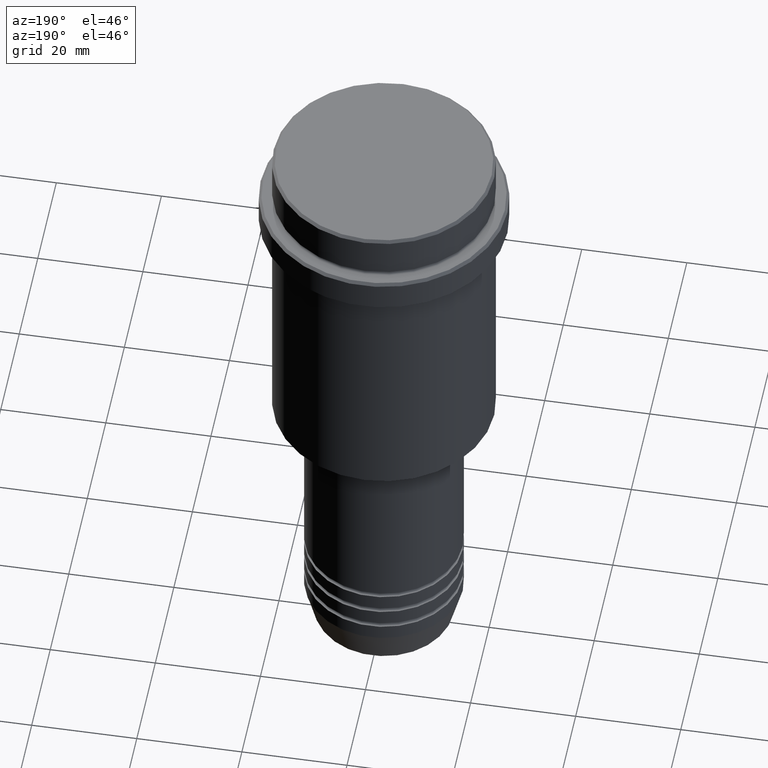
[diagram: clean part render]
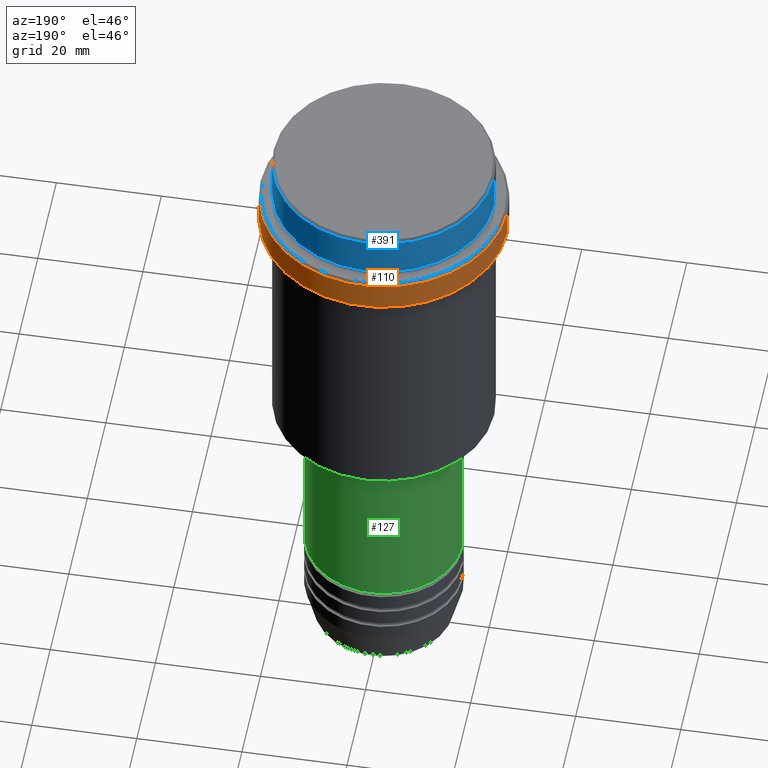
[diagram: same view with three faces highlighted in distinct colors, each labeled with its STEP entity id]
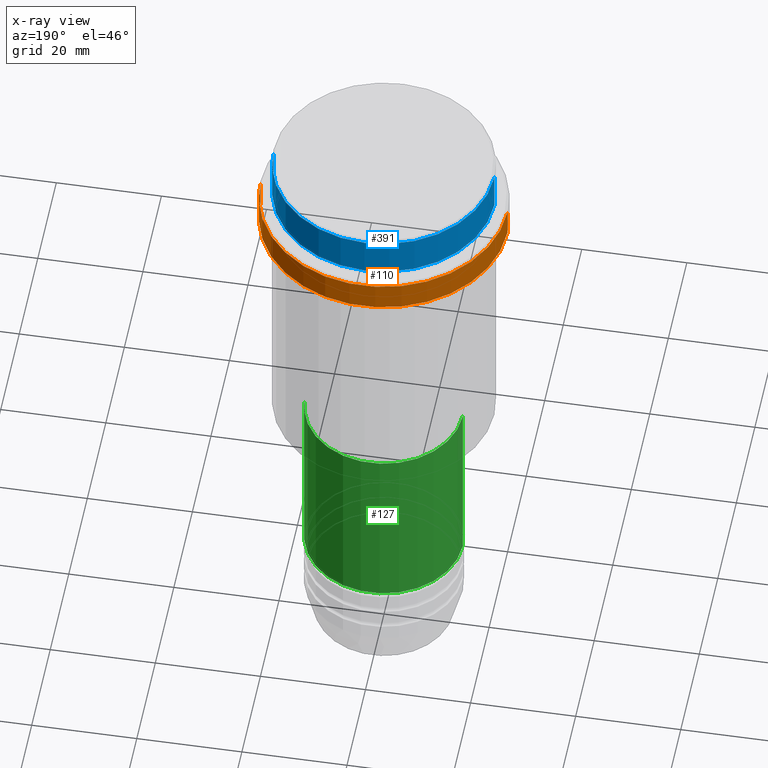
[diagram: x-ray of the same camera — body ghosted, the three highlighted faces saturated]
A machine part, auxiliary view with three faces highlighted in distinct colors.
The next image is the same camera in x-ray (body ghosted, the three faces saturated) — at least one of them is partly hidden behind the body in this view.
Their STEP definitions:

[orange] entity #110 — the highlighted cylindrical surface (partial cylindrical patch) has radius 23.5 mm, axis along (-0, -0, 1).
#11 = ORIENTED_EDGE ( 'NONE', *, *, #380, .T. ) ;
#14 = ORIENTED_EDGE ( 'NONE', *, *, #615, .T. ) ;
#110 = ADVANCED_FACE ( 'NONE', ( #1264 ), #506, .T. ) ;
#157 = CIRCLE ( 'NONE', #631, 23.50000000000000000 ) ;
#167 = LINE ( 'NONE', #1138, #679 ) ;
#306 = DIRECTION ( 'NONE',  ( 1.000000000000000000, 0.000000000000000000, 0.000000000000000000 ) ) ;
#379 = CARTESIAN_POINT ( 'NONE',  ( 23.50000000000000000, 0.000000000000000000, -9.500000000000026645 ) ) ;
#380 = EDGE_CURVE ( 'NONE', #586, #867, #167, .T. ) ;
#399 = DIRECTION ( 'NONE',  ( 0.000000000000000000, 0.000000000000000000, -1.000000000000000000 ) ) ;
#506 = CYLINDRICAL_SURFACE ( 'NONE', #771, 23.50000000000000000 ) ;
#526 = CARTESIAN_POINT ( 'NONE',  ( 23.50000000000000355, 0.000000000000000000, -15.00000000000000000 ) ) ;
#545 = VECTOR ( 'NONE', #651, 1000.000000000000000 ) ;
#586 = VERTEX_POINT ( 'NONE', #717 ) ;
#615 = EDGE_CURVE ( 'NONE', #867, #1340, #157, .T. ) ;
#631 = AXIS2_PLACEMENT_3D ( 'NONE', #1064, #399, #306 ) ;
#651 = DIRECTION ( 'NONE',  ( -0.000000000000000000, -0.000000000000000000, 1.000000000000000000 ) ) ;
#679 = VECTOR ( 'NONE', #912, 1000.000000000000000 ) ;
#683 = EDGE_LOOP ( 'NONE', ( #975, #11, #14, #955 ) ) ;
#694 = CARTESIAN_POINT ( 'NONE',  ( -23.50000000000000000, 2.877919977996280320E-15, -9.500000000000026645 ) ) ;
#716 = CARTESIAN_POINT ( 'NONE',  ( 0.000000000000000000, 0.000000000000000000, -15.00000000000000000 ) ) ;
#717 = CARTESIAN_POINT ( 'NONE',  ( -23.50000000000000711, 2.877919977996281109E-15, -15.00000000000000000 ) ) ;
#732 = DIRECTION ( 'NONE',  ( 1.000000000000000000, 0.000000000000000000, 0.000000000000000000 ) ) ;
#768 = CARTESIAN_POINT ( 'NONE',  ( 23.50000000000000000, 0.000000000000000000, 0.000000000000000000 ) ) ;
#771 = AXIS2_PLACEMENT_3D ( 'NONE', #834, #1271, #732 ) ;
#817 = CIRCLE ( 'NONE', #1119, 23.50000000000000355 ) ;
#834 = CARTESIAN_POINT ( 'NONE',  ( 0.000000000000000000, 0.000000000000000000, 0.000000000000000000 ) ) ;
#867 = VERTEX_POINT ( 'NONE', #694 ) ;
#912 = DIRECTION ( 'NONE',  ( -0.000000000000000000, -0.000000000000000000, 1.000000000000000000 ) ) ;
#955 = ORIENTED_EDGE ( 'NONE', *, *, #1231, .F. ) ;
#975 = ORIENTED_EDGE ( 'NONE', *, *, #983, .T. ) ;
#983 = EDGE_CURVE ( 'NONE', #1414, #586, #817, .T. ) ;
#1064 = CARTESIAN_POINT ( 'NONE',  ( 0.000000000000000000, 0.000000000000000000, -9.500000000000026645 ) ) ;
#1119 = AXIS2_PLACEMENT_3D ( 'NONE', #716, #1385, #1150 ) ;
#1138 = CARTESIAN_POINT ( 'NONE',  ( -23.50000000000000000, 2.877919977996280320E-15, 0.000000000000000000 ) ) ;
#1150 = DIRECTION ( 'NONE',  ( 1.000000000000000000, 0.000000000000000000, 0.000000000000000000 ) ) ;
#1195 = LINE ( 'NONE', #768, #545 ) ;
#1231 = EDGE_CURVE ( 'NONE', #1414, #1340, #1195, .T. ) ;
#1264 = FACE_OUTER_BOUND ( 'NONE', #683, .T. ) ;
#1271 = DIRECTION ( 'NONE',  ( -0.000000000000000000, -0.000000000000000000, 1.000000000000000000 ) ) ;
#1340 = VERTEX_POINT ( 'NONE', #379 ) ;
#1385 = DIRECTION ( 'NONE',  ( -0.000000000000000000, -0.000000000000000000, 1.000000000000000000 ) ) ;
#1414 = VERTEX_POINT ( 'NONE', #526 ) ;

[blue] entity #391 — the highlighted cylindrical surface (partial cylindrical patch) has radius 21 mm, axis along (-0, -0, 1).
#20 = CIRCLE ( 'NONE', #178, 21.00000000000000000 ) ;
#32 = EDGE_LOOP ( 'NONE', ( #1215, #236, #114, #277 ) ) ;
#66 = VECTOR ( 'NONE', #787, 1000.000000000000000 ) ;
#87 = CARTESIAN_POINT ( 'NONE',  ( -21.00000000000000000, 2.571758278209441661E-15, -7.999999999999998224 ) ) ;
#114 = ORIENTED_EDGE ( 'NONE', *, *, #601, .T. ) ;
#123 = CARTESIAN_POINT ( 'NONE',  ( 0.000000000000000000, 0.000000000000000000, -7.999999999999998224 ) ) ;
#129 = LINE ( 'NONE', #1192, #856 ) ;
#178 = AXIS2_PLACEMENT_3D ( 'NONE', #123, #971, #566 ) ;
#192 = EDGE_CURVE ( 'NONE', #876, #537, #20, .T. ) ;
#236 = ORIENTED_EDGE ( 'NONE', *, *, #280, .T. ) ;
#246 = CARTESIAN_POINT ( 'NONE',  ( 21.00000000000000000, 0.000000000000000000, 0.000000000000000000 ) ) ;
#257 = CYLINDRICAL_SURFACE ( 'NONE', #1293, 21.00000000000000000 ) ;
#277 = ORIENTED_EDGE ( 'NONE', *, *, #407, .F. ) ;
#280 = EDGE_CURVE ( 'NONE', #537, #1322, #129, .T. ) ;
#282 = CARTESIAN_POINT ( 'NONE',  ( 0.000000000000000000, 0.000000000000000000, -0.4999999999999831246 ) ) ;
#343 = CARTESIAN_POINT ( 'NONE',  ( 21.00000000000000000, 0.000000000000000000, -0.4999999999999831246 ) ) ;
#391 = ADVANCED_FACE ( 'NONE', ( #711 ), #257, .T. ) ;
#407 = EDGE_CURVE ( 'NONE', #876, #706, #1127, .T. ) ;
#467 = CARTESIAN_POINT ( 'NONE',  ( 21.00000000000000000, 0.000000000000000000, -7.999999999999998224 ) ) ;
#537 = VERTEX_POINT ( 'NONE', #87 ) ;
#566 = DIRECTION ( 'NONE',  ( 1.000000000000000000, 0.000000000000000000, 0.000000000000000000 ) ) ;
#599 = CARTESIAN_POINT ( 'NONE',  ( 0.000000000000000000, 0.000000000000000000, 0.000000000000000000 ) ) ;
#601 = EDGE_CURVE ( 'NONE', #1322, #706, #1139, .T. ) ;
#706 = VERTEX_POINT ( 'NONE', #343 ) ;
#711 = FACE_OUTER_BOUND ( 'NONE', #32, .T. ) ;
#787 = DIRECTION ( 'NONE',  ( -0.000000000000000000, -0.000000000000000000, 1.000000000000000000 ) ) ;
#856 = VECTOR ( 'NONE', #864, 1000.000000000000000 ) ;
#864 = DIRECTION ( 'NONE',  ( -0.000000000000000000, -0.000000000000000000, 1.000000000000000000 ) ) ;
#876 = VERTEX_POINT ( 'NONE', #467 ) ;
#907 = CARTESIAN_POINT ( 'NONE',  ( -21.00000000000000000, 2.571758278209441661E-15, -0.4999999999999831246 ) ) ;
#971 = DIRECTION ( 'NONE',  ( -0.000000000000000000, -0.000000000000000000, 1.000000000000000000 ) ) ;
#1034 = DIRECTION ( 'NONE',  ( -0.000000000000000000, -0.000000000000000000, 1.000000000000000000 ) ) ;
#1042 = DIRECTION ( 'NONE',  ( 1.000000000000000000, 0.000000000000000000, 0.000000000000000000 ) ) ;
#1127 = LINE ( 'NONE', #246, #66 ) ;
#1139 = CIRCLE ( 'NONE', #1252, 21.00000000000000000 ) ;
#1192 = CARTESIAN_POINT ( 'NONE',  ( -21.00000000000000000, 2.571758278209441661E-15, 0.000000000000000000 ) ) ;
#1215 = ORIENTED_EDGE ( 'NONE', *, *, #192, .T. ) ;
#1227 = DIRECTION ( 'NONE',  ( 1.000000000000000000, 0.000000000000000000, 0.000000000000000000 ) ) ;
#1252 = AXIS2_PLACEMENT_3D ( 'NONE', #282, #1269, #1042 ) ;
#1269 = DIRECTION ( 'NONE',  ( 0.000000000000000000, 0.000000000000000000, -1.000000000000000000 ) ) ;
#1293 = AXIS2_PLACEMENT_3D ( 'NONE', #599, #1034, #1227 ) ;
#1322 = VERTEX_POINT ( 'NONE', #907 ) ;

[green] entity #127 — the highlighted cylindrical surface (partial cylindrical patch) has radius 15 mm, axis along (-0, -0, 1).
#21 = ORIENTED_EDGE ( 'NONE', *, *, #137, .F. ) ;
#41 = CARTESIAN_POINT ( 'NONE',  ( 15.00000000000000000, 0.000000000000000000, 0.000000000000000000 ) ) ;
#74 = DIRECTION ( 'NONE',  ( 1.000000000000000000, 0.000000000000000000, 0.000000000000000000 ) ) ;
#127 = ADVANCED_FACE ( 'NONE', ( #609 ), #188, .T. ) ;
#137 = EDGE_CURVE ( 'NONE', #916, #348, #626, .T. ) ;
#139 = CARTESIAN_POINT ( 'NONE',  ( 15.00000000000000000, 0.000000000000000000, -66.00000000000000000 ) ) ;
#188 = CYLINDRICAL_SURFACE ( 'NONE', #1410, 15.00000000000000000 ) ;
#203 = DIRECTION ( 'NONE',  ( -0.000000000000000000, -0.000000000000000000, 1.000000000000000000 ) ) ;
#209 = CARTESIAN_POINT ( 'NONE',  ( 0.000000000000000000, 0.000000000000000000, -100.9999999999999005 ) ) ;
#244 = DIRECTION ( 'NONE',  ( 1.000000000000000000, 0.000000000000000000, 0.000000000000000000 ) ) ;
#252 = EDGE_CURVE ( 'NONE', #405, #908, #1313, .T. ) ;
#254 = CARTESIAN_POINT ( 'NONE',  ( 15.00000000000000000, 0.000000000000000000, -100.9999999999999005 ) ) ;
#255 = CIRCLE ( 'NONE', #658, 15.00000000000000000 ) ;
#348 = VERTEX_POINT ( 'NONE', #139 ) ;
#405 = VERTEX_POINT ( 'NONE', #1251 ) ;
#417 = ORIENTED_EDGE ( 'NONE', *, *, #252, .T. ) ;
#424 = AXIS2_PLACEMENT_3D ( 'NONE', #1130, #894, #244 ) ;
#470 = DIRECTION ( 'NONE',  ( -0.000000000000000000, -0.000000000000000000, 1.000000000000000000 ) ) ;
#530 = CARTESIAN_POINT ( 'NONE',  ( -15.00000000000000000, 1.836970198721029589E-15, 0.000000000000000000 ) ) ;
#591 = VECTOR ( 'NONE', #470, 1000.000000000000000 ) ;
#609 = FACE_OUTER_BOUND ( 'NONE', #1196, .T. ) ;
#626 = LINE ( 'NONE', #41, #591 ) ;
#658 = AXIS2_PLACEMENT_3D ( 'NONE', #209, #203, #1283 ) ;
#781 = DIRECTION ( 'NONE',  ( -0.000000000000000000, -0.000000000000000000, 1.000000000000000000 ) ) ;
#813 = VECTOR ( 'NONE', #781, 1000.000000000000000 ) ;
#837 = CIRCLE ( 'NONE', #424, 15.00000000000000000 ) ;
#846 = EDGE_CURVE ( 'NONE', #348, #908, #837, .T. ) ;
#894 = DIRECTION ( 'NONE',  ( -0.000000000000000000, -0.000000000000000000, 1.000000000000000000 ) ) ;
#908 = VERTEX_POINT ( 'NONE', #918 ) ;
#916 = VERTEX_POINT ( 'NONE', #254 ) ;
#918 = CARTESIAN_POINT ( 'NONE',  ( -15.00000000000000000, 1.836970198721029589E-15, -66.00000000000000000 ) ) ;
#923 = ORIENTED_EDGE ( 'NONE', *, *, #846, .F. ) ;
#952 = ORIENTED_EDGE ( 'NONE', *, *, #1201, .T. ) ;
#1130 = CARTESIAN_POINT ( 'NONE',  ( 0.000000000000000000, 0.000000000000000000, -66.00000000000000000 ) ) ;
#1148 = DIRECTION ( 'NONE',  ( -0.000000000000000000, -0.000000000000000000, 1.000000000000000000 ) ) ;
#1172 = CARTESIAN_POINT ( 'NONE',  ( 0.000000000000000000, 0.000000000000000000, 0.000000000000000000 ) ) ;
#1196 = EDGE_LOOP ( 'NONE', ( #952, #417, #923, #21 ) ) ;
#1201 = EDGE_CURVE ( 'NONE', #916, #405, #255, .T. ) ;
#1251 = CARTESIAN_POINT ( 'NONE',  ( -15.00000000000000000, 1.836970198721029589E-15, -100.9999999999999005 ) ) ;
#1283 = DIRECTION ( 'NONE',  ( 1.000000000000000000, 0.000000000000000000, 0.000000000000000000 ) ) ;
#1313 = LINE ( 'NONE', #530, #813 ) ;
#1410 = AXIS2_PLACEMENT_3D ( 'NONE', #1172, #1148, #74 ) ;